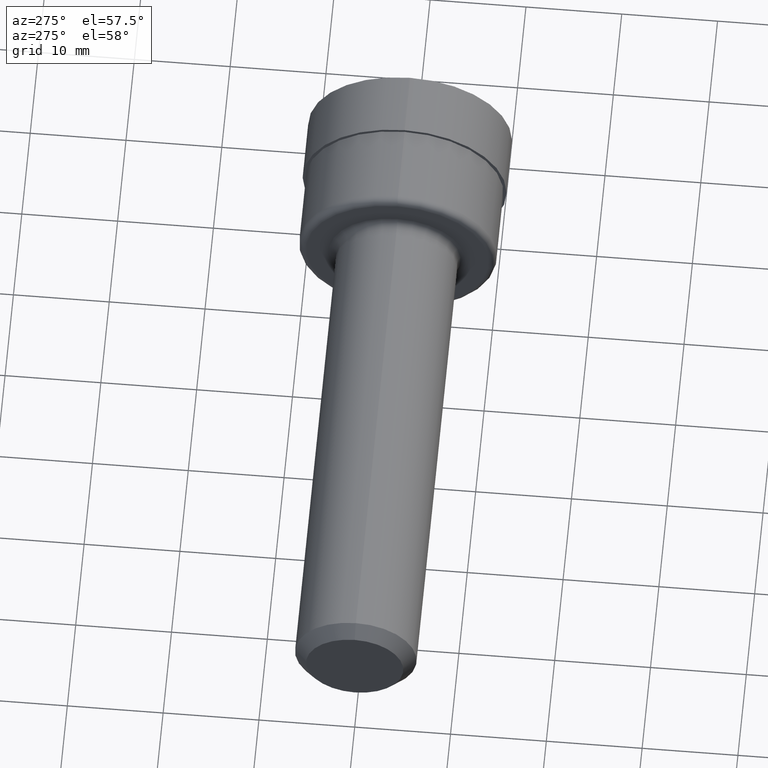
[diagram: clean part render]
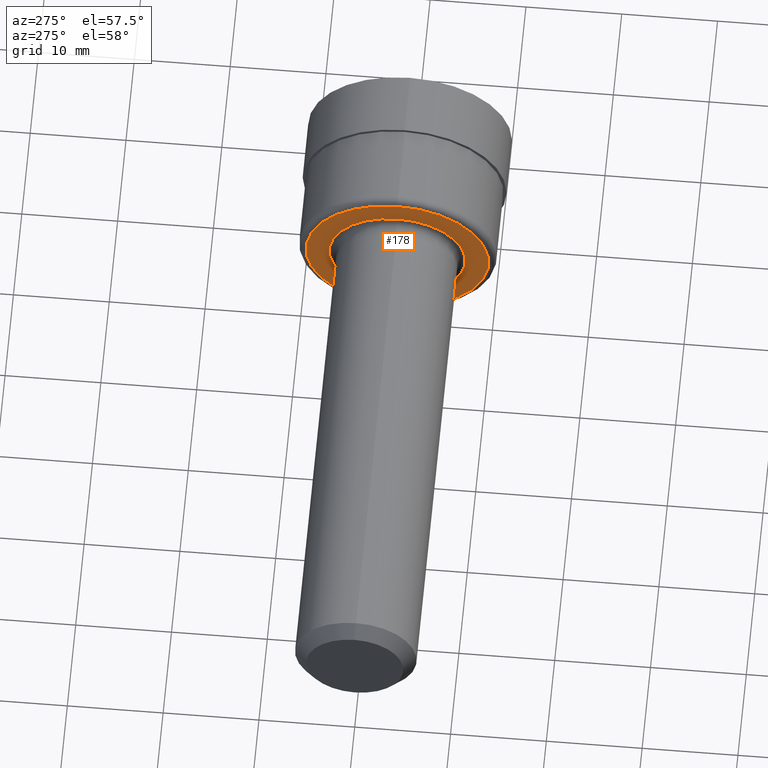
[diagram: same view with one face highlighted and labeled with its STEP entity id]
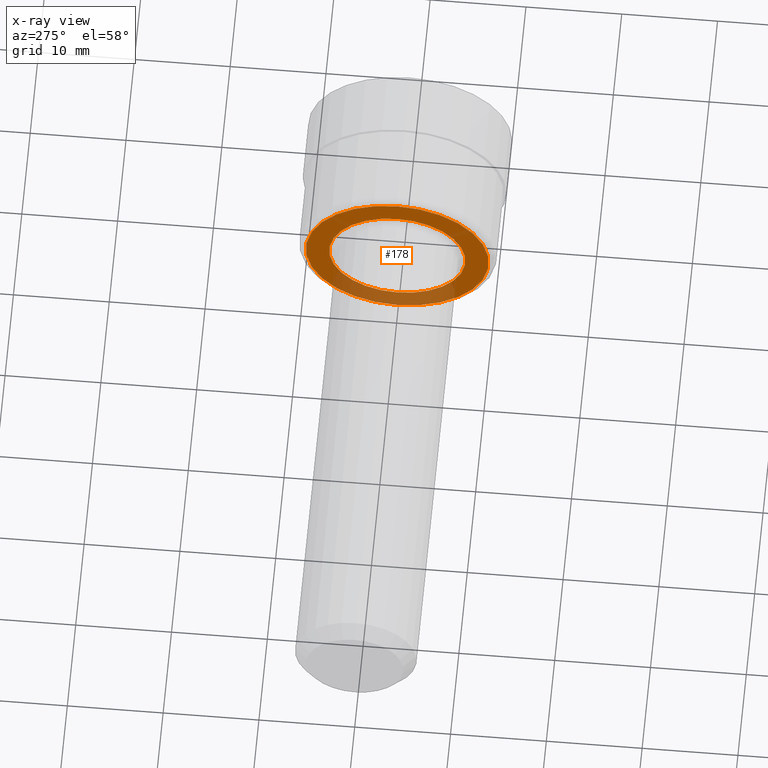
[diagram: x-ray of the same camera — body ghosted, the highlighted face saturated]
A machine part, auxiliary view. The second image highlights one B-rep face of the part: STEP entity #178.
The next image is the same camera in x-ray: the body ghosted, the highlighted face saturated — about 27% of this face is hidden behind the body in this view.
In plain terms, the highlighted planar face has unit normal (1, 0, 0).
Its self-contained STEP definition (entity closure, byte-faithful):
#25 = CARTESIAN_POINT ( 'NONE',  ( 2.000000000000000000, 0.000000000000000000, 0.2799999999999999711 ) ) ;
#31 = CIRCLE ( 'NONE', #505, 0.2799999999999999711 ) ;
#57 = FACE_OUTER_BOUND ( 'NONE', #335, .T. ) ;
#58 = DIRECTION ( 'NONE',  ( -1.000000000000000000, -0.000000000000000000, -0.000000000000000000 ) ) ;
#86 = CARTESIAN_POINT ( 'NONE',  ( 2.000000000000000000, 0.000000000000000000, 0.000000000000000000 ) ) ;
#120 = EDGE_CURVE ( 'NONE', #273, #580, #31, .T. ) ;
#156 = AXIS2_PLACEMENT_3D ( 'NONE', #240, #587, #640 ) ;
#169 = EDGE_LOOP ( 'NONE', ( #593, #485 ) ) ;
#178 = ADVANCED_FACE ( 'NONE', ( #511, #57 ), #617, .F. ) ;
#212 = ORIENTED_EDGE ( 'NONE', *, *, #579, .T. ) ;
#220 = CIRCLE ( 'NONE', #156, 0.3760000000000000564 ) ;
#240 = CARTESIAN_POINT ( 'NONE',  ( 2.000000000000000000, 0.000000000000000000, 0.000000000000000000 ) ) ;
#250 = CARTESIAN_POINT ( 'NONE',  ( 2.000000000000000000, 3.429011037612588783E-17, -0.2799999999999999711 ) ) ;
#253 = AXIS2_PLACEMENT_3D ( 'NONE', #411, #257, #479 ) ;
#257 = DIRECTION ( 'NONE',  ( 1.000000000000000000, 0.000000000000000000, 0.000000000000000000 ) ) ;
#264 = VERTEX_POINT ( 'NONE', #268 ) ;
#268 = CARTESIAN_POINT ( 'NONE',  ( 2.000000000000000000, 4.788368984666151531E-17, -0.3760000000000000564 ) ) ;
#273 = VERTEX_POINT ( 'NONE', #25 ) ;
#289 = CARTESIAN_POINT ( 'NONE',  ( 2.000000000000000000, 0.000000000000000000, 0.3760000000000000564 ) ) ;
#300 = DIRECTION ( 'NONE',  ( 0.000000000000000000, 0.000000000000000000, 1.000000000000000000 ) ) ;
#318 = CIRCLE ( 'NONE', #405, 0.2799999999999999711 ) ;
#327 = AXIS2_PLACEMENT_3D ( 'NONE', #86, #581, #475 ) ;
#335 = EDGE_LOOP ( 'NONE', ( #416, #212 ) ) ;
#396 = CARTESIAN_POINT ( 'NONE',  ( 2.000000000000000000, 0.000000000000000000, 0.000000000000000000 ) ) ;
#405 = AXIS2_PLACEMENT_3D ( 'NONE', #464, #58, #300 ) ;
#411 = CARTESIAN_POINT ( 'NONE',  ( 2.000000000000000000, 0.2799999999999999711, 0.000000000000000000 ) ) ;
#416 = ORIENTED_EDGE ( 'NONE', *, *, #504, .T. ) ;
#464 = CARTESIAN_POINT ( 'NONE',  ( 2.000000000000000000, 0.000000000000000000, 0.000000000000000000 ) ) ;
#475 = DIRECTION ( 'NONE',  ( 0.000000000000000000, 0.000000000000000000, 1.000000000000000000 ) ) ;
#479 = DIRECTION ( 'NONE',  ( 0.000000000000000000, 0.000000000000000000, -1.000000000000000000 ) ) ;
#485 = ORIENTED_EDGE ( 'NONE', *, *, #634, .F. ) ;
#502 = DIRECTION ( 'NONE',  ( 0.000000000000000000, 0.000000000000000000, 1.000000000000000000 ) ) ;
#504 = EDGE_CURVE ( 'NONE', #520, #264, #220, .T. ) ;
#505 = AXIS2_PLACEMENT_3D ( 'NONE', #396, #603, #502 ) ;
#511 = FACE_BOUND ( 'NONE', #169, .T. ) ;
#520 = VERTEX_POINT ( 'NONE', #289 ) ;
#579 = EDGE_CURVE ( 'NONE', #264, #520, #616, .T. ) ;
#580 = VERTEX_POINT ( 'NONE', #250 ) ;
#581 = DIRECTION ( 'NONE',  ( -1.000000000000000000, -0.000000000000000000, -0.000000000000000000 ) ) ;
#587 = DIRECTION ( 'NONE',  ( -1.000000000000000000, -0.000000000000000000, -0.000000000000000000 ) ) ;
#593 = ORIENTED_EDGE ( 'NONE', *, *, #120, .F. ) ;
#603 = DIRECTION ( 'NONE',  ( -1.000000000000000000, -0.000000000000000000, -0.000000000000000000 ) ) ;
#616 = CIRCLE ( 'NONE', #327, 0.3760000000000000564 ) ;
#617 = PLANE ( 'NONE',  #253 ) ;
#634 = EDGE_CURVE ( 'NONE', #580, #273, #318, .T. ) ;
#640 = DIRECTION ( 'NONE',  ( 0.000000000000000000, 0.000000000000000000, 1.000000000000000000 ) ) ;